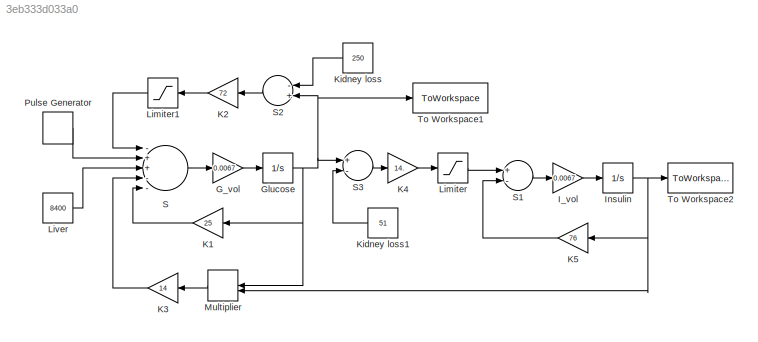
MODEL slx_3eb333d033a0
KIND model
BLOCK [Gain] G_vol
  Gain = 0.0067
  OutDataTypeStr = Inherit: Inherit via internal rule
  ParamDataTypeStr = Inherit: Inherit via internal rule
  SaturateOnIntegerOverflow = off
BLOCK [Integrator] Glucose
  InitialCondition = 81
  Ports = [1, 1]
BLOCK [Gain] I_vol
  Gain = 0.0067
  OutDataTypeStr = Inherit: Inherit via internal rule
  ParamDataTypeStr = Inherit: Inherit via internal rule
  SaturateOnIntegerOverflow = off
BLOCK [Integrator] Insulin
  InitialCondition = 5.66
  Ports = [1, 1]
BLOCK [Gain] K1
  Gain = 25
  OutDataTypeStr = Inherit: Inherit via internal rule
  ParamDataTypeStr = Inherit: Inherit via internal rule
  SaturateOnIntegerOverflow = off
BLOCK [Gain] K2 
  Gain = 72
  OutDataTypeStr = Inherit: Inherit via internal rule
  ParamDataTypeStr = Inherit: Inherit via internal rule
  SaturateOnIntegerOverflow = off
BLOCK [Gain] K3
  Gain = 14
  OutDataTypeStr = Inherit: Inherit via internal rule
  ParamDataTypeStr = Inherit: Inherit via internal rule
  SaturateOnIntegerOverflow = off
BLOCK [Gain] K4
  Gain = 14.
  OutDataTypeStr = Inherit: Inherit via internal rule
  ParamDataTypeStr = Inherit: Inherit via internal rule
  SaturateOnIntegerOverflow = off
BLOCK [Gain] K5
  Gain = 76
  OutDataTypeStr = Inherit: Inherit via internal rule
  ParamDataTypeStr = Inherit: Inherit via internal rule
  SaturateOnIntegerOverflow = off
BLOCK [Constant] Kidney loss
  Value = 250
BLOCK [Constant] Kidney loss1
  Value = 51
BLOCK [Saturate] Limiter
  InputPortMap = u0
  LowerLimit = 0
  Ports = [1, 1]
  UpperLimit = 10000
BLOCK [Saturate] Limiter1
  InputPortMap = u0
  LowerLimit = 0
  Ports = [1, 1]
  UpperLimit = 10000
BLOCK [Constant] Liver
  Value = 8400
BLOCK [DotProduct] Multiplier
  OutDataTypeStr = Inherit: Inherit via internal rule
BLOCK [DiscretePulseGenerator] Pulse Generator
  Amplitude = 80000
  Period = 20
  PhaseDelay = 1
  Ports = [0, 1]
  PulseType = Time based
  PulseWidth = 2.5
BLOCK [Sum] S
  InputSameDT = off
  Inputs = -++--
  OutDataTypeStr = Inherit: Inherit via internal rule
  Ports = [5, 1]
  SaturateOnIntegerOverflow = off
BLOCK [Sum] S1
  InputSameDT = off
  Inputs = +-
  OutDataTypeStr = Inherit: Inherit via internal rule
  Ports = [2, 1]
  SaturateOnIntegerOverflow = off
BLOCK [Sum] S2
  InputSameDT = off
  Inputs = -+
  OutDataTypeStr = Inherit: Inherit via internal rule
  Ports = [2, 1]
  SaturateOnIntegerOverflow = off
BLOCK [Sum] S3
  InputSameDT = off
  Inputs = +-
  OutDataTypeStr = Inherit: Inherit via internal rule
  Ports = [2, 1]
  SaturateOnIntegerOverflow = off
BLOCK [ToWorkspace] To Workspace1
  MaxDataPoints = inf
  Ports = [1]
  SampleTime = -1
  VariableName = Conc_Glucose
BLOCK [ToWorkspace] To Workspace2
  MaxDataPoints = inf
  Ports = [1]
  SampleTime = -1
  VariableName = Conc_Insulin
LINE G_vol:1 -> Glucose:1
NET Glucose:1 -> K1:1, Multiplier:1, S2:2, S3:1, To Workspace1:1
LINE I_vol:1 -> Insulin:1
NET Insulin:1 -> K5:1, Multiplier:2, To Workspace2:1
LINE K1:1 -> S:5
LINE K2 :1 -> Limiter1:1
LINE K3:1 -> S:4
LINE K4:1 -> Limiter:1
LINE K5:1 -> S1:2
LINE Kidney loss1:1 -> S3:2
LINE Kidney loss:1 -> S2:1
LINE Limiter1:1 -> S:1
LINE Limiter:1 -> S1:1
LINE Liver:1 -> S:3
LINE Multiplier:1 -> K3:1
LINE Pulse Generator:1 -> S:2
LINE S1:1 -> I_vol:1
LINE S2:1 -> K2 :1
LINE S3:1 -> K4:1
LINE S:1 -> G_vol:1
note: NET lines group one-source signal fan-out (src -> all destinations, sorted); 1:1 wires keep LINE
